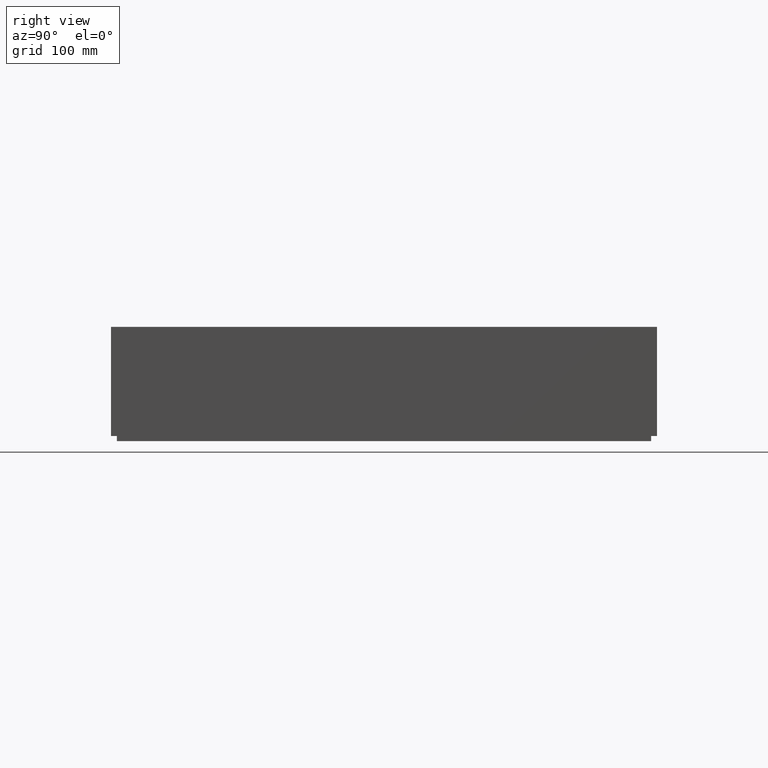
[diagram: clean part render]
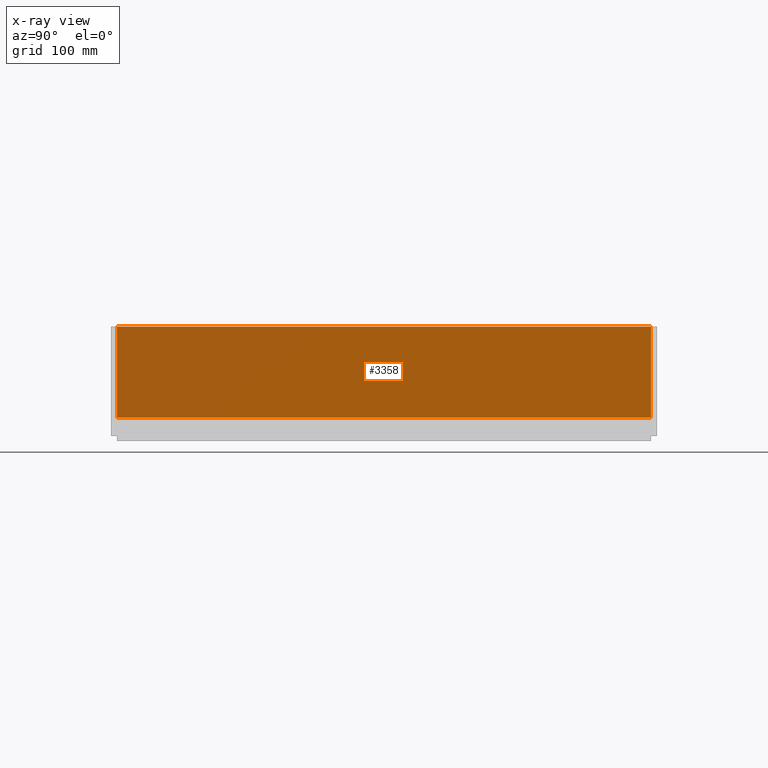
[diagram: x-ray — body ghosted, one internal face saturated and labeled with its STEP entity id]
A machine part, right view, then the same camera in x-ray: the body is ghosted and one INTERNAL B-rep face — a face not visible from any outside direction — is saturated and labeled: STEP entity #3358.
In plain terms, the highlighted planar face has unit normal (-1, -0, 0).
Its self-contained STEP definition (entity closure, byte-faithful):
#155 = CARTESIAN_POINT ( 'NONE',  ( 8.000000000000019540, 742.0000000000000000, -125.0000000000000568 ) ) ;
#162 = ORIENTED_EDGE ( 'NONE', *, *, #4972, .T. ) ;
#354 = DIRECTION ( 'NONE',  ( -1.387778780781445676E-16, -7.462978534500538931E-34, -1.000000000000000000 ) ) ;
#434 = FACE_OUTER_BOUND ( 'NONE', #6105, .T. ) ;
#495 = VECTOR ( 'NONE', #2291, 1000.000000000000000 ) ;
#1248 = CARTESIAN_POINT ( 'NONE',  ( 8.000000000000019540, 8.000000000000007105, 1.387778780781445676E-14 ) ) ;
#1631 = LINE ( 'NONE', #4606, #7280 ) ;
#2104 = DIRECTION ( 'NONE',  ( 1.387778780781445676E-16, 7.462978534500538931E-34, 1.000000000000000000 ) ) ;
#2291 = DIRECTION ( 'NONE',  ( 0.0000000000000000000, -1.000000000000000000, -3.720586543649989036E-17 ) ) ;
#2441 = CARTESIAN_POINT ( 'NONE',  ( 8.000000000000019540, 742.0000000000000000, 0.0000000000000000000 ) ) ;
#2576 = ORIENTED_EDGE ( 'NONE', *, *, #6169, .T. ) ;
#2700 = DIRECTION ( 'NONE',  ( 1.387778780781445676E-16, 7.462978534500538931E-34, 1.000000000000000000 ) ) ;
#3358 = ADVANCED_FACE ( 'NONE', ( #434 ), #3427, .F. ) ;
#3427 = PLANE ( 'NONE',  #6206 ) ;
#3890 = VERTEX_POINT ( 'NONE', #7243 ) ;
#3984 = EDGE_CURVE ( 'NONE', #8936, #3890, #5960, .T. ) ;
#4072 = LINE ( 'NONE', #6986, #4696 ) ;
#4606 = CARTESIAN_POINT ( 'NONE',  ( 8.000000000000019540, 900.2131818450031915, 1.387778780781445676E-14 ) ) ;
#4696 = VECTOR ( 'NONE', #354, 1000.000000000000000 ) ;
#4856 = EDGE_CURVE ( 'NONE', #7250, #7436, #1631, .T. ) ;
#4865 = VECTOR ( 'NONE', #2104, 1000.000000000000000 ) ;
#4972 = EDGE_CURVE ( 'NONE', #7436, #3890, #4072, .T. ) ;
#4979 = ORIENTED_EDGE ( 'NONE', *, *, #3984, .F. ) ;
#5780 = LINE ( 'NONE', #8715, #4865 ) ;
#5960 = LINE ( 'NONE', #8895, #495 ) ;
#6105 = EDGE_LOOP ( 'NONE', ( #162, #4979, #2576, #6620 ) ) ;
#6169 = EDGE_CURVE ( 'NONE', #8936, #7250, #5780, .T. ) ;
#6206 = AXIS2_PLACEMENT_3D ( 'NONE', #6349, #9313, #2700 ) ;
#6349 = CARTESIAN_POINT ( 'NONE',  ( 7.999999999999998224, 900.2131818450031915, -149.9999999999999716 ) ) ;
#6620 = ORIENTED_EDGE ( 'NONE', *, *, #4856, .T. ) ;
#6986 = CARTESIAN_POINT ( 'NONE',  ( 7.999999999999998224, 8.000000000000007105, -149.9999999999999716 ) ) ;
#7243 = CARTESIAN_POINT ( 'NONE',  ( 8.000000000000019540, 8.000000000000007105, -125.0000000000000853 ) ) ;
#7250 = VERTEX_POINT ( 'NONE', #2441 ) ;
#7280 = VECTOR ( 'NONE', #7506, 1000.000000000000000 ) ;
#7436 = VERTEX_POINT ( 'NONE', #1248 ) ;
#7506 = DIRECTION ( 'NONE',  ( -7.703719777548943412E-34, -1.000000000000000000, -2.196763842816690895E-34 ) ) ;
#8715 = CARTESIAN_POINT ( 'NONE',  ( 8.000000000000019540, 742.0000000000000000, 0.0000000000000000000 ) ) ;
#8895 = CARTESIAN_POINT ( 'NONE',  ( 8.000000000000019540, 4.000000000000003553, -125.0000000000000853 ) ) ;
#8936 = VERTEX_POINT ( 'NONE', #155 ) ;
#9313 = DIRECTION ( 'NONE',  ( -1.000000000000000000, -7.703719777548943412E-34, 1.387778780781445676E-16 ) ) ;